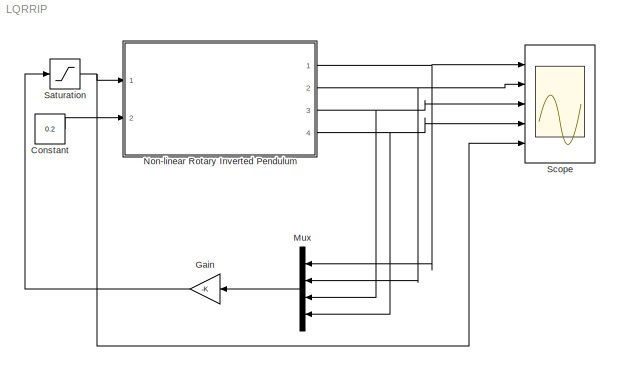
MODEL LQRRIP
KIND model
BLOCK [Constant] Constant
  SID = 26
  Value = 0.2
BLOCK [Gain] Gain
  Gain = -K
  Multiplication = Matrix(K*u)
  OutDataTypeStr = Inherit: Inherit via internal rule
  ParamDataTypeStr = Inherit: Inherit via internal rule
  SID = 25
  SaturateOnIntegerOverflow = off
BLOCK [Mux] Mux
  DisplayOption = bar
  Ports = [4, 1]
  SID = 28
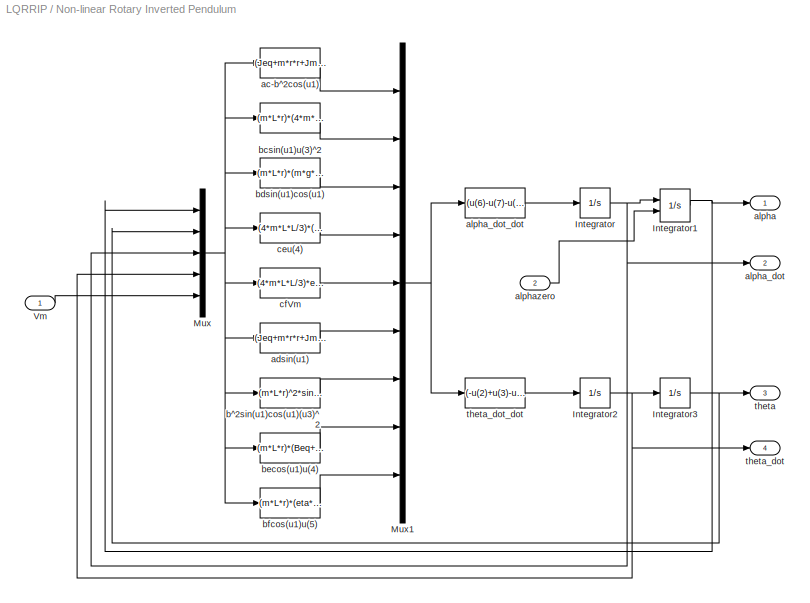
BLOCK [SubSystem] Non-linear Rotary Inverted Pendulum
  FunctionWithSeparateData = off
  MaskHideContents = off
  MinAlgLoopOccurrences = off
  Opaque = off
  Ports = [2, 4]
  PropExecContextOutsideSubsystem = off
  RTWSystemCode = Auto
  RequestExecContextInheritance = off
  SID = 1
BLOCK [Integrator] Non-linear Rotary Inverted Pendulum/Integrator
  LowerSaturationLimit = -pi/18
  Ports = [1, 1]
  SID = 4
  UpperSaturationLimit = pi/18
BLOCK [Integrator] Non-linear Rotary Inverted Pendulum/Integrator1
  InitialConditionSource = external
  LowerSaturationLimit = -pi/18
  Ports = [2, 1]
  SID = 5
  UpperSaturationLimit = pi/18
BLOCK [Integrator] Non-linear Rotary Inverted Pendulum/Integrator2
  Ports = [1, 1]
  SID = 6
BLOCK [Integrator] Non-linear Rotary Inverted Pendulum/Integrator3
  LowerSaturationLimit = -2
  Ports = [1, 1]
  SID = 7
  UpperSaturationLimit = 2
BLOCK [Mux] Non-linear Rotary Inverted Pendulum/Mux
  DisplayOption = bar
  Inputs = 5
  Ports = [5, 1]
  SID = 8
BLOCK [Mux] Non-linear Rotary Inverted Pendulum/Mux1
  DisplayOption = bar
  Inputs = 9
  Ports = [9, 1]
  SID = 9
BLOCK [Inport] Non-linear Rotary Inverted Pendulum/Vm
  IconDisplay = Port number
  SID = 2
BLOCK [Fcn] Non-linear Rotary Inverted Pendulum/ac-b^2cos(u1)
  Expr = (Jeq+m*r*r+Jm)*(4*m*L*L/3)-(m*L*r)^2*cos(u(1))
  SID = 10
BLOCK [Fcn] Non-linear Rotary Inverted Pendulum/adsin(u1)
  Expr = (Jeq+m*r*r+Jm)*(m*g*L)*sin(u(1))
  SID = 11
BLOCK [Outport] Non-linear Rotary Inverted Pendulum/alpha
  IconDisplay = Port number
  SID = 22
BLOCK [Outport] Non-linear Rotary Inverted Pendulum/alpha_dot
  IconDisplay = Port number
  Port = 2
  SID = 24
BLOCK [Fcn] Non-linear Rotary Inverted Pendulum/alpha_dot_dot
  Expr = (u(6)-u(7)-u(8)+u(9))/u(1)
  SID = 12
BLOCK [Inport] Non-linear Rotary Inverted Pendulum/alphazero
  IconDisplay = Port number
  Port = 2
  SID = 3
BLOCK [Fcn] Non-linear Rotary Inverted Pendulum/b^2sin(u1)cos(u1)(u3)^2
  Expr = (m*L*r)^2*sin(u(1))*cos(u(1))*(u(3))^2
  SID = 13
BLOCK [Fcn] Non-linear Rotary Inverted Pendulum/bcsin(u1)u(3)^2
  Expr = (m*L*r)*(4*m*L*L/3)*sin(u(1))*u(3)*u(3)
  SID = 14
BLOCK [Fcn] Non-linear Rotary Inverted Pendulum/bdsin(u1)cos(u1)
  Expr = (m*L*r)*(m*g*L)*sin(u(1))*cos(u(1))
  SID = 15
BLOCK [Fcn] Non-linear Rotary Inverted Pendulum/becos(u1)u(4)
  Expr = (m*L*r)*(Beq+eta*Kt*Km/Rm)*cos(u(1))*u(4)
  SID = 16
BLOCK [Fcn] Non-linear Rotary Inverted Pendulum/bfcos(u1)u(5)
  Expr = (m*L*r)*(eta*Kt/Rm)*cos(u(1))*u(5)
  SID = 17
BLOCK [Fcn] Non-linear Rotary Inverted Pendulum/ceu(4)
  Expr = (4*m*L*L/3)*(Beq+eta*Kt*Km/Rm)*u(4)
  SID = 18
BLOCK [Fcn] Non-linear Rotary Inverted Pendulum/cfVm
  Expr = (4*m*L*L/3)*eta*Kt/Rm*u(5)
  SID = 19
BLOCK [Outport] Non-linear Rotary Inverted Pendulum/theta
  IconDisplay = Port number
  Port = 3
  SID = 21
BLOCK [Outport] Non-linear Rotary Inverted Pendulum/theta_dot
  IconDisplay = Port number
  Port = 4
  SID = 23
BLOCK [Fcn] Non-linear Rotary Inverted Pendulum/theta_dot_dot
  Expr = (-u(2)+u(3)-u(4)+u(5))/u(1)
  SID = 20
BLOCK [Saturate] Saturation
  InputPortMap = u0
  LowerLimit = -24
  Ports = [1, 1]
  SID = 29
  UpperLimit = 24
BLOCK [Scope] Scope
  DataFormat = StructureWithTime
  Floating = off
  NumInputPorts = 5
  Ports = [5]
  SID = 27
  SampleTime = 0
  ShowLegends = off
  TimeRange = 0.1762452107279693
  YMax = 0.3~1~0~2~-22.21052631578942
  YMin = -0.1~-2~-2~-6~-28.52631578947364
LINE Constant:1 -> Non-linear Rotary Inverted Pendulum:2
LINE Gain:1 -> Saturation:1
LINE Mux:1 -> Gain:1
NET Non-linear Rotary Inverted Pendulum/Integrator1:1 -> Non-linear Rotary Inverted Pendulum/Mux:1, Non-linear Rotary Inverted Pendulum/alpha:1
NET Non-linear Rotary Inverted Pendulum/Integrator2:1 -> Non-linear Rotary Inverted Pendulum/Integrator3:1, Non-linear Rotary Inverted Pendulum/Mux:4, Non-linear Rotary Inverted Pendulum/theta_dot:1
NET Non-linear Rotary Inverted Pendulum/Integrator3:1 -> Non-linear Rotary Inverted Pendulum/Mux:2, Non-linear Rotary Inverted Pendulum/theta:1
NET Non-linear Rotary Inverted Pendulum/Integrator:1 -> Non-linear Rotary Inverted Pendulum/Integrator1:1, Non-linear Rotary Inverted Pendulum/Mux:3, Non-linear Rotary Inverted Pendulum/alpha_dot:1
NET Non-linear Rotary Inverted Pendulum/Mux1:1 -> Non-linear Rotary Inverted Pendulum/alpha_dot_dot:1, Non-linear Rotary Inverted Pendulum/theta_dot_dot:1
NET Non-linear Rotary Inverted Pendulum/Mux:1 -> Non-linear Rotary Inverted Pendulum/ac-b^2cos(u1):1, Non-linear Rotary Inverted Pendulum/adsin(u1):1, Non-linear Rotary Inverted Pendulum/b^2sin(u1)cos(u1)(u3)^2:1, Non-linear Rotary Inverted Pendulum/bcsin(u1)u(3)^2:1, Non-linear Rotary Inverted Pendulum/bdsin(u1)cos(u1):1, Non-linear Rotary Inverted Pendulum/becos(u1)u(4):1, Non-linear Rotary Inverted Pendulum/bfcos(u1)u(5):1, Non-linear Rotary Inverted Pendulum/ceu(4):1, Non-linear Rotary Inverted Pendulum/cfVm:1
LINE Non-linear Rotary Inverted Pendulum/Vm:1 -> Non-linear Rotary Inverted Pendulum/Mux:5
LINE Non-linear Rotary Inverted Pendulum/ac-b^2cos(u1):1 -> Non-linear Rotary Inverted Pendulum/Mux1:1
LINE Non-linear Rotary Inverted Pendulum/adsin(u1):1 -> Non-linear Rotary Inverted Pendulum/Mux1:6
LINE Non-linear Rotary Inverted Pendulum/alpha_dot_dot:1 -> Non-linear Rotary Inverted Pendulum/Integrator:1
LINE Non-linear Rotary Inverted Pendulum/alphazero:1 -> Non-linear Rotary Inverted Pendulum/Integrator1:2
LINE Non-linear Rotary Inverted Pendulum/b^2sin(u1)cos(u1)(u3)^2:1 -> Non-linear Rotary Inverted Pendulum/Mux1:7
LINE Non-linear Rotary Inverted Pendulum/bcsin(u1)u(3)^2:1 -> Non-linear Rotary Inverted Pendulum/Mux1:2
LINE Non-linear Rotary Inverted Pendulum/bdsin(u1)cos(u1):1 -> Non-linear Rotary Inverted Pendulum/Mux1:3
LINE Non-linear Rotary Inverted Pendulum/becos(u1)u(4):1 -> Non-linear Rotary Inverted Pendulum/Mux1:8
LINE Non-linear Rotary Inverted Pendulum/bfcos(u1)u(5):1 -> Non-linear Rotary Inverted Pendulum/Mux1:9
LINE Non-linear Rotary Inverted Pendulum/ceu(4):1 -> Non-linear Rotary Inverted Pendulum/Mux1:4
LINE Non-linear Rotary Inverted Pendulum/cfVm:1 -> Non-linear Rotary Inverted Pendulum/Mux1:5
LINE Non-linear Rotary Inverted Pendulum/theta_dot_dot:1 -> Non-linear Rotary Inverted Pendulum/Integrator2:1
NET Non-linear Rotary Inverted Pendulum:1 -> Mux:1, Scope:1
NET Non-linear Rotary Inverted Pendulum:2 -> Mux:2, Scope:2
NET Non-linear Rotary Inverted Pendulum:3 -> Mux:3, Scope:3
NET Non-linear Rotary Inverted Pendulum:4 -> Mux:4, Scope:4
NET Saturation:1 -> Non-linear Rotary Inverted Pendulum:1, Scope:5
note: NET lines group one-source signal fan-out (src -> all destinations, sorted); 1:1 wires keep LINE
